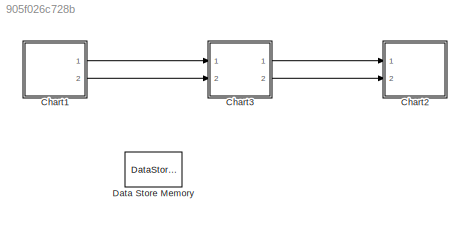
MODEL slx_905f026c728b
KIND model
CONFIG AbsTol = auto
CONFIG EnableMultiTasking = off
CONFIG FixedStep = auto
CONFIG MaxStep = auto
CONFIG MinStep = auto
CONFIG RelTol = 1e-3
CONFIG SampleTimeConstraint = Unconstrained
CONFIG Solver = VariableStepAuto
CONFIG SolverName = VariableStepAuto
CONFIG StartTime = 0.0
CONFIG StopTime = 0.6
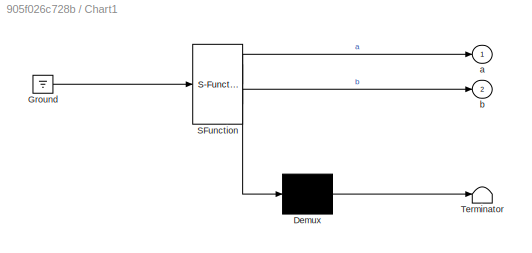
BLOCK [SubSystem] Chart1
  ErrorFcn = Stateflow.Translate.translate
  PermitHierarchicalResolution = ExplicitOnly
  Ports = [0, 2]
  RequestExecContextInheritance = off
  SFBlockType = Chart
  TreatAsAtomicUnit = on
BLOCK [Demux] Chart1/ Demux 
  Outputs = 1
  Ports = [1, 1]
BLOCK [Ground] Chart1/ Ground 
BLOCK [S-Function] Chart1/ SFunction 
  EnableBusSupport = on
  FunctionName = sf_sfun
  PortCounts = [1 3]
  Ports = [1, 3]
  SFcnIsStateOwnerBlock = off
  SFunctionDeploymentMode = off
  Tag = Stateflow S-Function Communication5_2018a 3
BLOCK [Terminator] Chart1/ Terminator 
BLOCK [Outport] Chart1/a
  VectorParamsAs1DForOutWhenUnconnected = off
BLOCK [Outport] Chart1/b
  Port = 2
  VectorParamsAs1DForOutWhenUnconnected = off
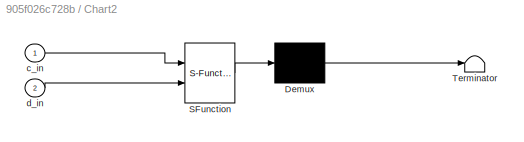
BLOCK [SubSystem] Chart2
  ErrorFcn = Stateflow.Translate.translate
  PermitHierarchicalResolution = ExplicitOnly
  Ports = [2]
  RequestExecContextInheritance = off
  SFBlockType = Chart
  TreatAsAtomicUnit = on
BLOCK [Demux] Chart2/ Demux 
  Outputs = 1
  Ports = [1, 1]
BLOCK [S-Function] Chart2/ SFunction 
  EnableBusSupport = on
  FunctionName = sf_sfun
  PortCounts = [2 1]
  Ports = [2, 1]
  SFcnIsStateOwnerBlock = off
  SFunctionDeploymentMode = off
  Tag = Stateflow S-Function Communication5_2018a 2
BLOCK [Terminator] Chart2/ Terminator 
BLOCK [Inport] Chart2/c_in
BLOCK [Inport] Chart2/d_in
  Port = 2
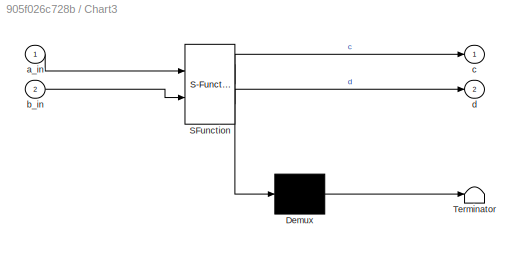
BLOCK [SubSystem] Chart3
  ErrorFcn = Stateflow.Translate.translate
  PermitHierarchicalResolution = ExplicitOnly
  Ports = [2, 2]
  RequestExecContextInheritance = off
  SFBlockType = Chart
  TreatAsAtomicUnit = on
BLOCK [Demux] Chart3/ Demux 
  Outputs = 1
  Ports = [1, 1]
BLOCK [S-Function] Chart3/ SFunction 
  EnableBusSupport = on
  FunctionName = sf_sfun
  PortCounts = [2 3]
  Ports = [2, 3]
  SFcnIsStateOwnerBlock = off
  SFunctionDeploymentMode = off
  Tag = Stateflow S-Function Communication5_2018a 1
BLOCK [Terminator] Chart3/ Terminator 
BLOCK [Inport] Chart3/a_in
BLOCK [Inport] Chart3/b_in
  Port = 2
BLOCK [Outport] Chart3/c
BLOCK [Outport] Chart3/d
  Port = 2
BLOCK [DataStoreMemory] Data Store Memory
  DataStoreName = global_x
  OutDataTypeStr = int32
  ReadBeforeWriteMsg = warning
  ShowAdditionalParam = off
  SignalType = real
  WriteAfterReadMsg = warning
  WriteAfterWriteMsg = warning
LINE Chart1:1 -> Chart3:1
LINE Chart1:2 -> Chart3:2
LINE Chart3:1 -> Chart2:1
LINE Chart3:2 -> Chart2:2
CHART Chart3 states=2 transitions=1
  STATE_LABEL 'C\nen: f("en_C")\ndu: c=a_in; d=2*b_in;\n global_x=global_x*2;'
  STATE_LABEL 'f(s)'
  STATE_LABEL 'SCRIPT:\nfunction f(s)\n  fprintf(s+"\\n");\n'
CHART Chart2 states=3 transitions=1
  STATE_LABEL 'A1\nen: g("en_A1")\ndu: f()'
  STATE_LABEL 'f'
  STATE_LABEL 'SCRIPT:\nfunction f\n  fprintf("%.0f %.0f %d\\n", c_in, d_in, global_x);'
  STATE_LABEL 'g(s)'
  STATE_LABEL 'SCRIPT:\nfunction g(s)\n  fprintf(s+"\\n");\n'
CHART Chart1 states=3 transitions=3
  STATE_LABEL 'A\nen:\nf("en_A")\n'
  STATE_LABEL 'B\nen:\nf("en_B")'
  STATE_LABEL 'f(s)'
  STATE_LABEL 'SCRIPT:\nfunction f(s)\n  fprintf(s+"\\n");'
